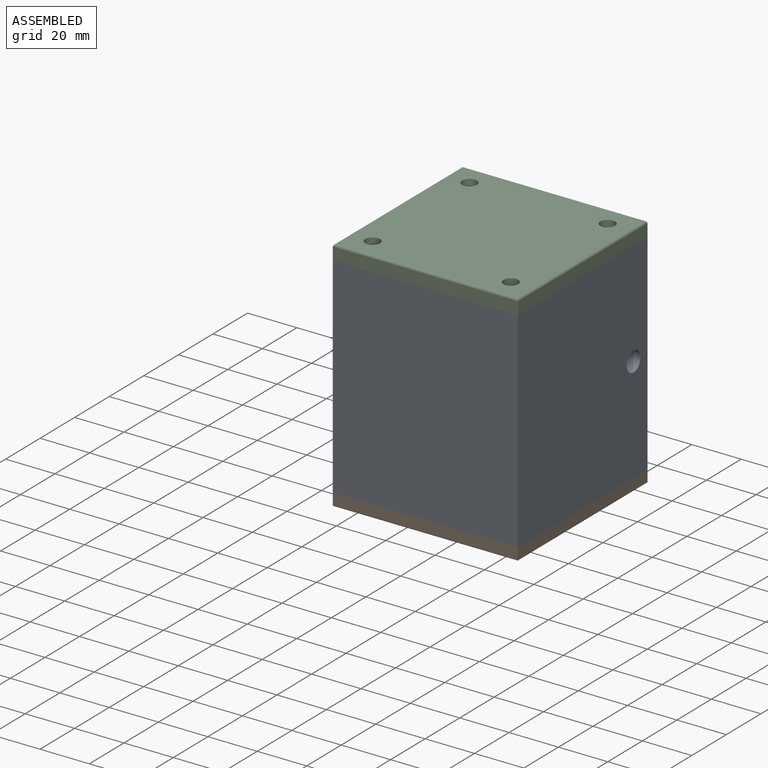
[diagram: assembled view]
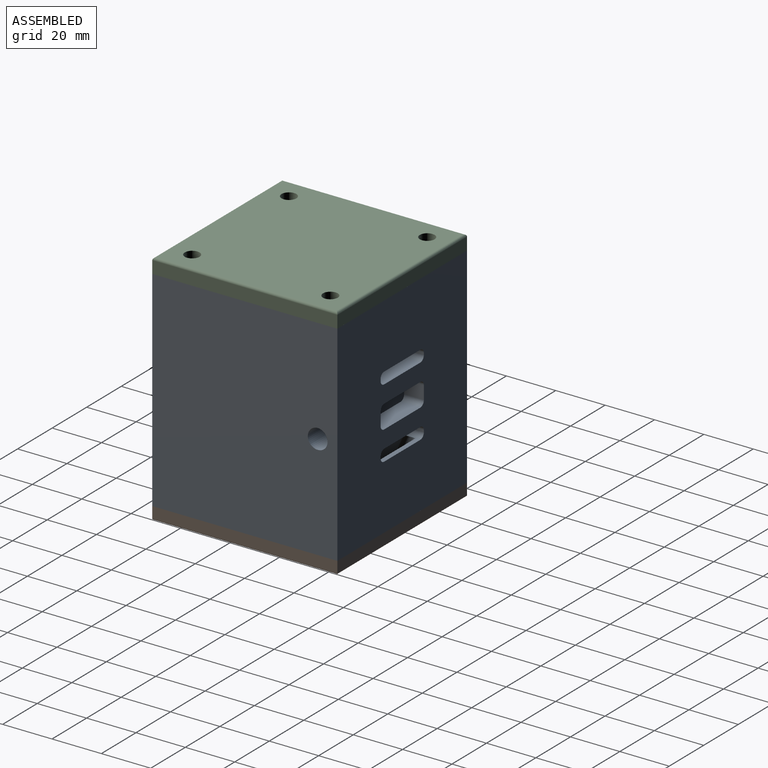
[diagram: assembled view, second angle]
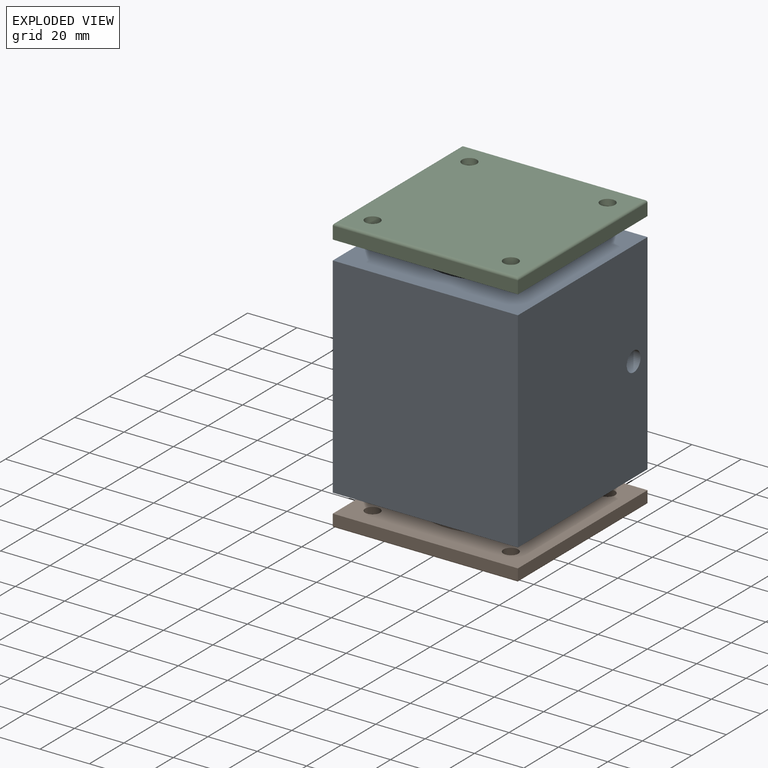
[diagram: exploded view]
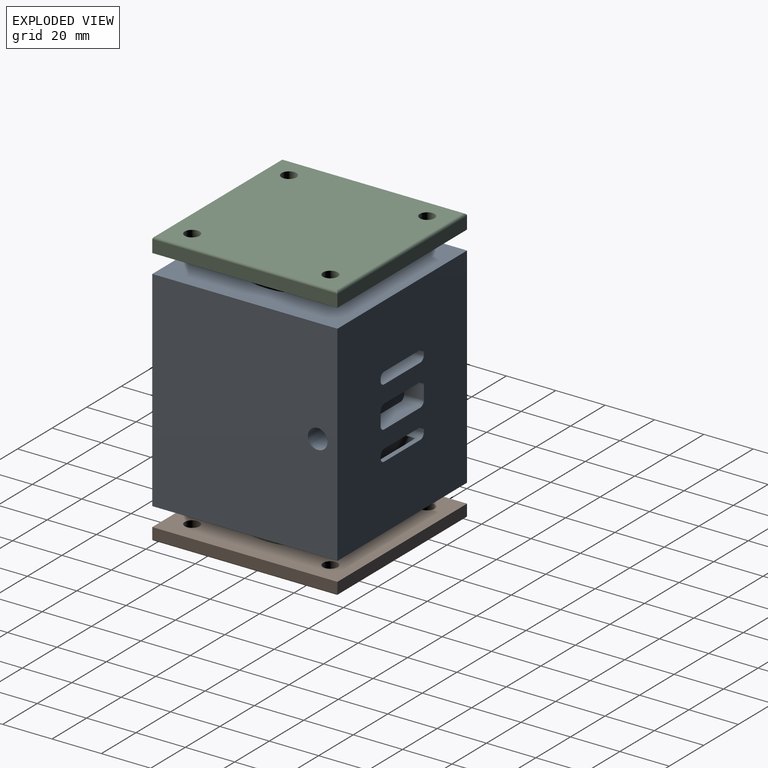
[diagram: exploded view, second angle]
ASSEMBLY  parts=3 mates=2
PART A: 55 faces, bbox 75x75x85.8 mm
  f0: plane 21x2mm, normal (0,0,1), area 42mm2, adj f4,f29,f31,f48,f50
  f1: cylinder r=2mm len=8mm, axis (0,1,0), area 22.3mm2, adj f3,f4,f11,f12,f44
  f2: cylinder r=2mm len=8mm, axis (0,1,0), area 22.3mm2, adj f3,f4,f12,f13,f44
  f3: plane 24.52x9.4mm, normal (0,1,0), area 182.3mm2, adj f1,f2,f11,f13,f14,f15,f16,f43
  f4: plane 85x75mm, normal (0,1,0), area 5915.3mm2, adj f0,f1,f2,f5,f8,f9,f10,f11
  f5: plane 85x75mm, normal (-1,0,0), area 6375mm2, adj f4,f6,f9,f10
  f6: plane 85x75mm, normal (0,-1,0), area 6375mm2, adj f5,f8,f9,f10
  f7: cylinder r=25mm len=85mm, axis (0,0,-1), area 13101.4mm2, adj f9,f10,f52,f53,f54
  f8: plane 85x75mm, normal (1,0,0), area 6324.7mm2, adj f4,f6,f9,f10,f44
  f9: plane 75x75mm, normal (0,0,1), area 3661.5mm2, adj f4,f5,f6,f7,f8
  f10: plane 75x75mm, normal (0,0,-1), area 3523.2mm2, adj f4,f5,f6,f7,f8,f36,f38,f40
  f11: plane 21x8mm, normal (0,0,-1), area 168mm2, adj f1,f3,f4,f16
  f12: plane 5.4x5.05mm, normal (-1,0,0), area 23.4mm2, adj f1,f2,f4,f44
  f13: plane 21x8mm, normal (0,0,1), area 168mm2, adj f2,f3,f4,f14
  f14: cylinder r=2mm len=8mm, axis (0,1,0), area 25.1mm2, adj f3,f4,f13,f15
  f15: plane 8x5.4mm, normal (1,0,0), area 43.2mm2, adj f3,f4,f14,f16
  f16: cylinder r=2mm len=8mm, axis (0,1,0), area 25.1mm2, adj f3,f4,f11,f15
  f17: cylinder r=2mm len=10mm, axis (0,1,0), area 31.4mm2, adj f4,f18,f24,f25
  f18: plane 21x10mm, normal (0,0,1), area 210mm2, adj f4,f17,f19,f25
  f19: cylinder r=2mm len=10mm, axis (0,1,0), area 31.4mm2, adj f4,f18,f20,f25
  f20: plane 10x0.7mm, normal (1,0,0), area 7mm2, adj f4,f19,f21,f25
  f21: cylinder r=2mm len=10mm, axis (0,1,0), area 31.4mm2, adj f4,f20,f22,f25
  f22: plane 21x10mm, normal (0,0,-1), area 210mm2, adj f4,f21,f23,f25
  f23: cylinder r=2mm len=10mm, axis (0,1,0), area 31.4mm2, adj f4,f22,f24,f25
  f24: plane 10x0.7mm, normal (-1,0,0), area 7mm2, adj f4,f17,f23,f25
  f25: plane 25x4.7mm, normal (0,1,0), area 114.1mm2, adj f17,f18,f19,f20,f21,f22,f23,f24
  f26: plane 21x10mm, normal (0,0,-1), area 210mm2, adj f4,f27,f33,f34
  f27: cylinder r=2mm len=10mm, axis (0,1,0), area 31.4mm2, adj f4,f26,f28,f34
  f28: plane 10x0.7mm, normal (-1,0,0), area 7mm2, adj f4,f27,f29,f34
  f29: cylinder r=2mm len=10mm, axis (0,1,0), area 31.4mm2, adj f0,f4,f28,f30,f34,f49
  f30: plane 21x2.93mm, normal (0,0,1), area 61.6mm2, adj f29,f31,f34,f53,f54
  f31: cylinder r=2mm len=10mm, axis (0,1,0), area 31.4mm2, adj f0,f4,f30,f32,f34,f51
  f32: plane 10x0.7mm, normal (1,0,0), area 7mm2, adj f4,f31,f33,f34
  f33: cylinder r=2mm len=10mm, axis (0,1,0), area 31.4mm2, adj f4,f26,f32,f34
  f34: plane 25x4.7mm, normal (0,1,0), area 114.1mm2, adj f26,f27,f28,f29,f30,f31,f32,f33
  f35: cone r=0mm half-angle=59deg, axis (0,0,-1), area 33mm2, adj f36
  f36: cylinder r=3mm len=15mm, axis (0,0,-1), area 282.7mm2, adj f10,f35
  f37: cone r=0mm half-angle=59deg, axis (0,0,-1), area 33mm2, adj f38
  f38: cylinder r=3mm len=15mm, axis (0,0,-1), area 282.7mm2, adj f10,f37
  f39: cone r=0mm half-angle=59deg, axis (0,0,-1), area 33mm2, adj f40
  f40: cylinder r=3mm len=15mm, axis (0,0,-1), area 282.7mm2, adj f10,f39
  f41: cone r=0mm half-angle=59deg, axis (0,0,-1), area 33mm2, adj f42
  f42: cylinder r=3mm len=15mm, axis (0,0,-1), area 282.7mm2, adj f10,f41
  f43: cone r=0mm half-angle=59deg, axis (1,0,0), area 29.3mm2, adj f3,f44
  f44: cylinder r=4mm len=30mm, axis (1,0,0), area 692.7mm2, adj f1,f2,f3,f8,f12,f43
  f45: cylinder r=2mm len=27.5mm, axis (0,-0.37,-0.93), area 88.1mm2, adj f10,f46,f48,f49
  f46: plane 26x11.26mm, normal (-1,0,0), area 19.6mm2, adj f10,f45,f49,f52
  f47: plane 26x11.26mm, normal (1,0,0), area 19.6mm2, adj f10,f50,f51,f54
  f48: plane 26x21.01mm, normal (0,-0.93,0.37), area 588.8mm2, adj f0,f10,f45,f49,f50
  f49: plane 5.07x2.01mm, normal (0,0,-1), area 8.3mm2, adj f29,f45,f46,f48,f52,f53
  f50: cylinder r=2mm len=27.5mm, axis (0,-0.37,-0.93), area 88.1mm2, adj f0,f10,f47,f48,f51
  f51: plane 5.07x1.99mm, normal (0,0,-1), area 8.2mm2, adj f31,f47,f50,f54
  f52: cylinder r=2mm len=26.89mm, axis (0,-0.37,-0.93), area 76.6mm2, adj f7,f10,f46,f49,f53
  f53: plane 21.01x19.18mm, normal (0,0.93,-0.37), area 347mm2, adj f7,f30,f49,f52,f54
  f54: cylinder r=2mm len=26.89mm, axis (0,-0.37,-0.93), area 76.8mm2, adj f7,f10,f30,f47,f51,f53
PART B: 21 faces, bbox 75x75x22 mm
  f0: cone r=0mm half-angle=59deg, axis (0,0,-1), area 40.3mm2, adj f15,f16
  f1: plane 75x4.5mm, normal (0,1,0), area 337.5mm2, adj f2,f4,f5,f17
  f2: plane 75x4.5mm, normal (-1,0,0), area 337.5mm2, adj f1,f3,f5,f18
  f3: plane 75x4.5mm, normal (0,-1,0), area 337.5mm2, adj f2,f4,f5,f20
  f4: plane 75x4.5mm, normal (1,0,0), area 337.5mm2, adj f1,f3,f5,f19
  f5: plane 75x75mm, normal (0,0,1), area 3548.4mm2, adj f1,f2,f3,f4,f7,f8,f9,f10
  f6: plane 74x74mm, normal (0,0,-1), area 5048.7mm2, adj f7,f8,f9,f10,f13,f17,f18,f19
  f7: cylinder r=3mm len=6mm, axis (0,0,-1), area 94.2mm2, adj f5,f6
  f8: cylinder r=3mm len=6mm, axis (0,0,-1), area 94.2mm2, adj f5,f6
  f9: cylinder r=3mm len=6mm, axis (0,0,-1), area 94.2mm2, adj f5,f6
  f10: cylinder r=3mm len=6mm, axis (0,0,-1), area 94.2mm2, adj f5,f6
  f11: cylinder r=25mm len=50mm, axis (0,0,-1), area 314.2mm2, adj f5,f12
  f12: plane 50x50mm, normal (0,0,1), area 1885mm2, adj f11,f16
  f13: cylinder r=10mm len=20mm, axis (0,0,1), area 942.5mm2, adj f6,f14
  f14: plane 20x20mm, normal (0,0,-1), area 201.1mm2, adj f13,f15
  f15: cylinder r=6mm len=15mm, axis (0,0,-1), area 565.5mm2, adj f0,f14
  f16: cylinder r=5mm len=10mm, axis (0,0,1), area 201mm2, adj f0,f12
  f17: cylinder r=0.5mm len=75mm, axis (-1,0,0), area 58.6mm2, adj f1,f6,f18,f19
  f18: cylinder r=0.5mm len=75mm, axis (0,-1,0), area 58.6mm2, adj f2,f6,f17,f20
  f19: cylinder r=0.5mm len=75mm, axis (0,1,0), area 58.6mm2, adj f4,f6,f17,f20
  f20: cylinder r=0.5mm len=75mm, axis (1,0,0), area 58.6mm2, adj f3,f6,f18,f19
PART C: 16 faces, bbox 75x75x8 mm
  f0: plane 75x5mm, normal (0,1,0), area 375mm2, adj f1,f3,f4,f12
  f1: plane 75x5mm, normal (-1,0,0), area 375mm2, adj f0,f2,f4,f13
  f2: plane 75x5mm, normal (0,-1,0), area 375mm2, adj f1,f3,f4,f15
  f3: plane 75x5mm, normal (1,0,0), area 375mm2, adj f0,f2,f4,f14
  f4: plane 75x75mm, normal (0,0,1), area 3548.4mm2, adj f0,f1,f2,f3,f6,f7,f8,f9
  f5: plane 73x73mm, normal (0,0,-1), area 5215.9mm2, adj f6,f7,f8,f9,f12,f13,f14,f15
  f6: cylinder r=3mm len=6mm, axis (0,0,-1), area 113.1mm2, adj f4,f5
  f7: cylinder r=3mm len=6mm, axis (0,0,-1), area 113.1mm2, adj f4,f5
  f8: cylinder r=3mm len=6mm, axis (0,0,-1), area 113.1mm2, adj f4,f5
  f9: cylinder r=3mm len=6mm, axis (0,0,-1), area 113.1mm2, adj f4,f5
  f10: cylinder r=25mm len=50mm, axis (0,0,-1), area 314.2mm2, adj f4,f11
  f11: plane 50x50mm, normal (0,0,1), area 1963.5mm2, adj f10
  f12: cylinder r=1mm len=75mm, axis (-1,0,0), area 116.7mm2, adj f0,f5,f13,f14
  f13: cylinder r=1mm len=75mm, axis (0,-1,0), area 116.7mm2, adj f1,f5,f12,f15
  f14: cylinder r=1mm len=75mm, axis (0,1,0), area 116.7mm2, adj f3,f5,f12,f15
  f15: cylinder r=1mm len=75mm, axis (1,0,0), area 116.7mm2, adj f2,f5,f13,f14
PLACE A t=(6.76,5.11,-1.69)mm
PLACE B rot(axis=(0,0,-1),180deg) t=(6.76,5.11,-6.69)mm
PLACE C rot(axis=(0,1,0),180deg) t=(6.76,5.11,89.31)mm
MATE fastened B.f11 <-> A.f7  axis (0,0,1) through (6.76,5.11,-1.69)mm
MATE fastened C.f10 <-> A.f7  axis (0,0,-1) through (6.76,5.11,83.31)mm
